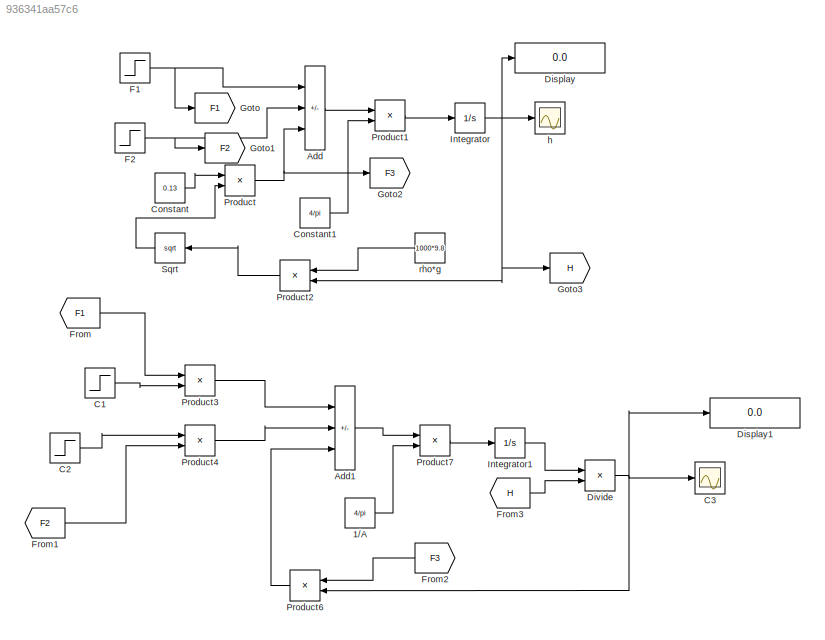
MODEL slx_936341aa57c6
KIND model
CONFIG AbsTol = auto
CONFIG EnableMultiTasking = off
CONFIG FixedStep = auto
CONFIG MaxStep = auto
CONFIG MinStep = auto
CONFIG RelTol = 1e-3
CONFIG SampleTimeConstraint = Unconstrained
CONFIG SolverName = VariableStepAuto
CONFIG StartTime = 0.0
CONFIG StopTime = 1.5
BLOCK [Constant] 1//A
  Value = 4/pi
BLOCK [Sum] Add
  IconShape = rectangular
  Inputs = ++-
  Ports = [3, 1]
BLOCK [Sum] Add1
  IconShape = rectangular
  Inputs = ++-
  Ports = [3, 1]
BLOCK [Step] C1
  After = 10*1.2
  Before = 10
  SampleTime = 0
  Time = 0
BLOCK [Step] C2
  After = 3
  Before = 3
  SampleTime = 0
  Time = 0
BLOCK [Scope] C3
  Floating = off
  NumInputPorts = 1
  Ports = [1]
  ScopeSpecificationString = Simulink.scopes.TimeScopeBlockCfg('CurrentConfiguration', extmgr.ConfigurationSet(extmgr.Configuration('Core','General UI',true),extmgr.Configuration('Core','Source UI',true),extmgr.Configuration('Sources','WiredSimulink',true,'DataLoggingVariableName','ScopeData1'),extmgr.Configuration('Visuals','Time Domain',true,'SerializedDisplays',{struct('MinYLimReal','5.32958','MaxYLimReal','5.33375','YLabe...<+1391ch>
BLOCK [Constant] Constant
  Value = 0.13
BLOCK [Constant] Constant1
  Value = 4/pi
BLOCK [Display] Display
  Decimation = 1
  Ports = [1]
BLOCK [Display] Display1
  Decimation = 1
  Ports = [1]
BLOCK [Product] Divide
  Inputs = */
  Ports = [2, 1]
BLOCK [Step] F1
  After = 6
  Before = 6
  SampleTime = 0
  Time = 0
BLOCK [Step] F2
  After = 12
  Before = 12
  SampleTime = 0
  Time = 0
BLOCK [From] From
  GotoTag = F1
BLOCK [From] From1
  GotoTag = F2
BLOCK [From] From2
  GotoTag = F3
  NameLocation = top
BLOCK [From] From3
  GotoTag = H
BLOCK [Goto] Goto
  GotoTag = F1
BLOCK [Goto] Goto1
  GotoTag = F2
BLOCK [Goto] Goto2
  GotoTag = F3
BLOCK [Goto] Goto3
  GotoTag = H
BLOCK [Integrator] Integrator
  InitialCondition = 1.956
  Ports = [1, 1]
BLOCK [Integrator] Integrator1
  InitialCondition = 5.33*1.956
  Ports = [1, 1]
BLOCK [Product] Product
  Ports = [2, 1]
BLOCK [Product] Product1
  Ports = [2, 1]
BLOCK [Product] Product2
  NameLocation = top
  Ports = [2, 1]
BLOCK [Product] Product3
  Ports = [2, 1]
BLOCK [Product] Product4
  Ports = [2, 1]
BLOCK [Product] Product6
  NameLocation = top
  Ports = [2, 1]
BLOCK [Product] Product7
  Ports = [2, 1]
BLOCK [Sqrt] Sqrt
  NameLocation = top
BLOCK [Scope] h
  Floating = off
  NumInputPorts = 1
  Ports = [1]
  ScopeSpecificationString = Simulink.scopes.TimeScopeBlockCfg('CurrentConfiguration', extmgr.ConfigurationSet(extmgr.Configuration('Core','General UI',true),extmgr.Configuration('Core','Source UI',true),extmgr.Configuration('Sources','WiredSimulink',true),extmgr.Configuration('Visuals','Time Domain',true,'SerializedDisplays',{struct('MinYLimReal','1.7','MaxYLimReal','2.3','YLabelReal','','MinYLimMag','1.95596','MaxYLimMag','...<+1359ch>
BLOCK [Constant] rho*g
  NameLocation = top
  Value = 1000*9.8
LINE 1//A:1 -> Product7:2
LINE Add1:1 -> Product7:1
LINE Add:1 -> Product1:1
LINE C1:1 -> Product3:2
LINE C2:1 -> Product4:1
LINE Constant1:1 -> Product1:2
LINE Constant:1 -> Product:1
NET Divide:1 -> C3:1, Display1:1, Product6:2
NET F1:1 -> Add:1, Goto:1
NET F2:1 -> Add:2, Goto1:1
LINE From1:1 -> Product4:2
LINE From2:1 -> Product6:1
LINE From3:1 -> Divide:2
LINE From:1 -> Product3:1
LINE Integrator1:1 -> Divide:1
NET Integrator:1 -> Display:1, Goto3:1, Product2:2, h:1
LINE Product1:1 -> Integrator:1
LINE Product2:1 -> Sqrt:1
LINE Product3:1 -> Add1:1
LINE Product4:1 -> Add1:2
LINE Product6:1 -> Add1:3
LINE Product7:1 -> Integrator1:1
NET Product:1 -> Add:3, Goto2:1
LINE Sqrt:1 -> Product:2
LINE rho*g:1 -> Product2:1
note: NET lines group one-source signal fan-out (src -> all destinations, sorted); 1:1 wires keep LINE
